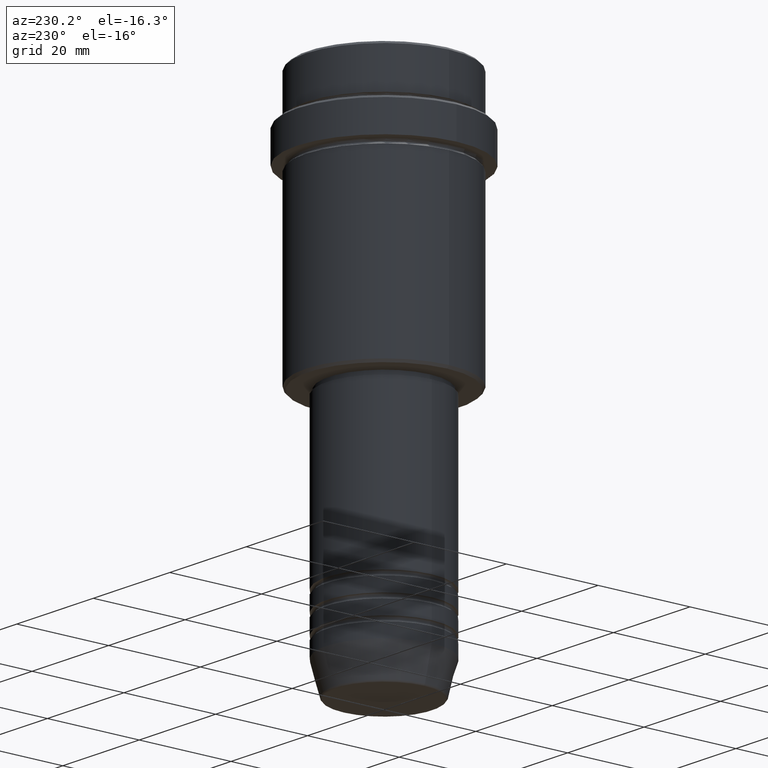
[diagram: clean part render]
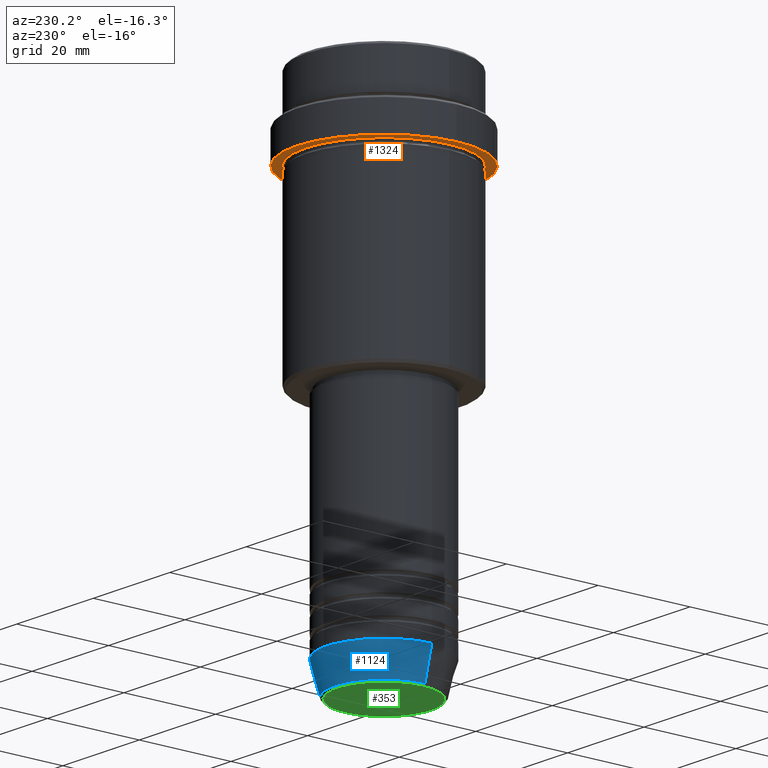
[diagram: same view with three faces highlighted in distinct colors, each labeled with its STEP entity id]
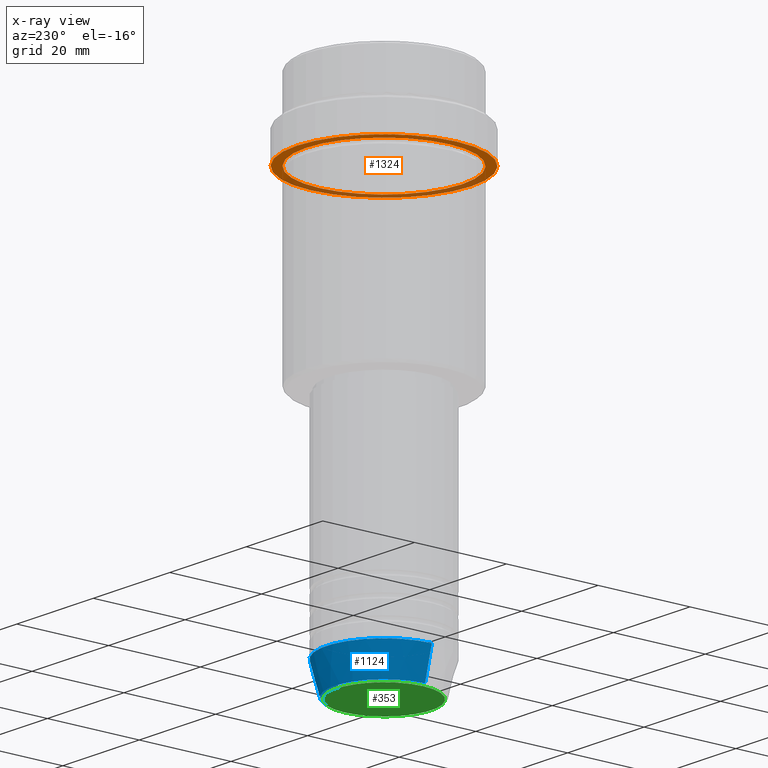
[diagram: x-ray of the same camera — body ghosted, the three highlighted faces saturated]
A machine part, auxiliary view with three faces highlighted in distinct colors.
The next image is the same camera in x-ray (body ghosted, the three faces saturated) — at least one of them is partly hidden behind the body in this view.
Their STEP definitions:

[orange] entity #1324 — the highlighted planar face has unit normal (0, 0, -1).
#48 = AXIS2_PLACEMENT_3D ( 'NONE', #284, #825, #1038 ) ;
#51 = CIRCLE ( 'NONE', #586, 16.99999999999998579 ) ;
#67 = ORIENTED_EDGE ( 'NONE', *, *, #301, .F. ) ;
#81 = FACE_OUTER_BOUND ( 'NONE', #479, .T. ) ;
#85 = VERTEX_POINT ( 'NONE', #260 ) ;
#91 = AXIS2_PLACEMENT_3D ( 'NONE', #837, #600, #1046 ) ;
#152 = EDGE_CURVE ( 'NONE', #972, #1305, #705, .T. ) ;
#179 = DIRECTION ( 'NONE',  ( 1.000000000000000000, 0.000000000000000000, 0.000000000000000000 ) ) ;
#240 = ORIENTED_EDGE ( 'NONE', *, *, #860, .T. ) ;
#260 = CARTESIAN_POINT ( 'NONE',  ( 16.99999999999998579, 2.081899558550499096E-15, -17.00000000000000000 ) ) ;
#268 = DIRECTION ( 'NONE',  ( -1.000000000000000000, 0.000000000000000000, -0.000000000000000000 ) ) ;
#276 = FACE_BOUND ( 'NONE', #937, .T. ) ;
#284 = CARTESIAN_POINT ( 'NONE',  ( 0.000000000000000000, 0.000000000000000000, -17.00000000000000000 ) ) ;
#301 = EDGE_CURVE ( 'NONE', #1305, #972, #708, .T. ) ;
#347 = DIRECTION ( 'NONE',  ( -0.000000000000000000, -0.000000000000000000, 1.000000000000000000 ) ) ;
#377 = PLANE ( 'NONE',  #1079 ) ;
#426 = CARTESIAN_POINT ( 'NONE',  ( 0.000000000000000000, 0.000000000000000000, -17.00000000000000000 ) ) ;
#464 = EDGE_CURVE ( 'NONE', #1073, #85, #51, .T. ) ;
#479 = EDGE_LOOP ( 'NONE', ( #67, #1051 ) ) ;
#556 = CIRCLE ( 'NONE', #48, 16.99999999999998579 ) ;
#586 = AXIS2_PLACEMENT_3D ( 'NONE', #1338, #347, #789 ) ;
#600 = DIRECTION ( 'NONE',  ( -0.000000000000000000, -0.000000000000000000, 1.000000000000000000 ) ) ;
#624 = CARTESIAN_POINT ( 'NONE',  ( -16.99999999999998579, 0.000000000000000000, -17.00000000000000000 ) ) ;
#705 = CIRCLE ( 'NONE', #91, 18.99999999999999289 ) ;
#708 = CIRCLE ( 'NONE', #802, 18.99999999999999289 ) ;
#736 = CARTESIAN_POINT ( 'NONE',  ( -18.99999999999999289, 2.326828918379970182E-15, -17.00000000000000000 ) ) ;
#789 = DIRECTION ( 'NONE',  ( -1.000000000000000000, 0.000000000000000000, 0.000000000000000000 ) ) ;
#802 = AXIS2_PLACEMENT_3D ( 'NONE', #426, #851, #179 ) ;
#823 = DIRECTION ( 'NONE',  ( 0.000000000000000000, 0.000000000000000000, -1.000000000000000000 ) ) ;
#825 = DIRECTION ( 'NONE',  ( -0.000000000000000000, -0.000000000000000000, 1.000000000000000000 ) ) ;
#837 = CARTESIAN_POINT ( 'NONE',  ( 0.000000000000000000, 0.000000000000000000, -17.00000000000000000 ) ) ;
#851 = DIRECTION ( 'NONE',  ( -0.000000000000000000, -0.000000000000000000, 1.000000000000000000 ) ) ;
#860 = EDGE_CURVE ( 'NONE', #85, #1073, #556, .T. ) ;
#937 = EDGE_LOOP ( 'NONE', ( #1270, #240 ) ) ;
#972 = VERTEX_POINT ( 'NONE', #736 ) ;
#1038 = DIRECTION ( 'NONE',  ( -1.000000000000000000, 0.000000000000000000, 0.000000000000000000 ) ) ;
#1046 = DIRECTION ( 'NONE',  ( 1.000000000000000000, 0.000000000000000000, 0.000000000000000000 ) ) ;
#1051 = ORIENTED_EDGE ( 'NONE', *, *, #152, .F. ) ;
#1073 = VERTEX_POINT ( 'NONE', #624 ) ;
#1079 = AXIS2_PLACEMENT_3D ( 'NONE', #1164, #823, #268 ) ;
#1164 = CARTESIAN_POINT ( 'NONE',  ( 0.000000000000000000, 18.99999999999999289, -17.00000000000000000 ) ) ;
#1270 = ORIENTED_EDGE ( 'NONE', *, *, #464, .T. ) ;
#1305 = VERTEX_POINT ( 'NONE', #1365 ) ;
#1324 = ADVANCED_FACE ( 'NONE', ( #276, #81 ), #377, .T. ) ;
#1338 = CARTESIAN_POINT ( 'NONE',  ( 0.000000000000000000, 0.000000000000000000, -17.00000000000000000 ) ) ;
#1365 = CARTESIAN_POINT ( 'NONE',  ( 18.99999999999999289, 0.000000000000000000, -17.00000000000000000 ) ) ;

[blue] entity #1124 — the highlighted conical surface has half-angle 15 deg.
#53 = CARTESIAN_POINT ( 'NONE',  ( -12.50000000000000000, 1.530808498934191521E-15, -103.0000000000000142 ) ) ;
#73 = EDGE_CURVE ( 'NONE', #207, #389, #359, .T. ) ;
#151 = CARTESIAN_POINT ( 'NONE',  ( 12.50000000000000000, 0.000000000000000000, -103.0000000000000142 ) ) ;
#207 = VERTEX_POINT ( 'NONE', #1145 ) ;
#233 = DIRECTION ( 'NONE',  ( 1.000000000000000000, 0.000000000000000000, 0.000000000000000000 ) ) ;
#299 = DIRECTION ( 'NONE',  ( 1.000000000000000000, 0.000000000000000000, 0.000000000000000000 ) ) ;
#303 = LINE ( 'NONE', #322, #878 ) ;
#319 = EDGE_CURVE ( 'NONE', #820, #501, #681, .T. ) ;
#322 = CARTESIAN_POINT ( 'NONE',  ( 12.50000000000000000, 0.000000000000000000, -103.0000000000000142 ) ) ;
#359 = CIRCLE ( 'NONE', #1217, 10.72365507213718416 ) ;
#372 = DIRECTION ( 'NONE',  ( -0.2588190451025213501, 3.169619151431772337E-17, 0.9659258262890680902 ) ) ;
#389 = VERTEX_POINT ( 'NONE', #1357 ) ;
#442 = ORIENTED_EDGE ( 'NONE', *, *, #73, .T. ) ;
#447 = VECTOR ( 'NONE', #372, 1000.000000000000000 ) ;
#455 = CARTESIAN_POINT ( 'NONE',  ( 0.000000000000000000, 0.000000000000000000, -103.0000000000000142 ) ) ;
#501 = VERTEX_POINT ( 'NONE', #1380 ) ;
#574 = FACE_OUTER_BOUND ( 'NONE', #979, .T. ) ;
#679 = DIRECTION ( 'NONE',  ( -0.000000000000000000, -0.000000000000000000, 1.000000000000000000 ) ) ;
#681 = CIRCLE ( 'NONE', #754, 12.50000000000000000 ) ;
#730 = CONICAL_SURFACE ( 'NONE', #1034, 12.50000000000000000, 0.2617993877991500740 ) ;
#754 = AXIS2_PLACEMENT_3D ( 'NONE', #1290, #877, #299 ) ;
#784 = CARTESIAN_POINT ( 'NONE',  ( 0.000000000000000000, 0.000000000000000000, -109.6294095225512706 ) ) ;
#816 = LINE ( 'NONE', #53, #447 ) ;
#820 = VERTEX_POINT ( 'NONE', #151 ) ;
#863 = ORIENTED_EDGE ( 'NONE', *, *, #1001, .F. ) ;
#877 = DIRECTION ( 'NONE',  ( -0.000000000000000000, -0.000000000000000000, 1.000000000000000000 ) ) ;
#878 = VECTOR ( 'NONE', #1406, 1000.000000000000000 ) ;
#898 = DIRECTION ( 'NONE',  ( 1.000000000000000000, 0.000000000000000000, 0.000000000000000000 ) ) ;
#979 = EDGE_LOOP ( 'NONE', ( #442, #1224, #1203, #863 ) ) ;
#1001 = EDGE_CURVE ( 'NONE', #207, #820, #303, .T. ) ;
#1034 = AXIS2_PLACEMENT_3D ( 'NONE', #455, #679, #898 ) ;
#1124 = ADVANCED_FACE ( 'NONE', ( #574 ), #730, .T. ) ;
#1145 = CARTESIAN_POINT ( 'NONE',  ( 10.72365507213718416, 0.000000000000000000, -109.6294095225512706 ) ) ;
#1203 = ORIENTED_EDGE ( 'NONE', *, *, #319, .F. ) ;
#1217 = AXIS2_PLACEMENT_3D ( 'NONE', #784, #1227, #233 ) ;
#1224 = ORIENTED_EDGE ( 'NONE', *, *, #1345, .T. ) ;
#1227 = DIRECTION ( 'NONE',  ( -0.000000000000000000, -0.000000000000000000, 1.000000000000000000 ) ) ;
#1290 = CARTESIAN_POINT ( 'NONE',  ( 0.000000000000000000, 0.000000000000000000, -103.0000000000000142 ) ) ;
#1345 = EDGE_CURVE ( 'NONE', #389, #501, #816, .T. ) ;
#1357 = CARTESIAN_POINT ( 'NONE',  ( -10.72365507213718416, 1.422038742429749727E-15, -109.6294095225512706 ) ) ;
#1380 = CARTESIAN_POINT ( 'NONE',  ( -12.50000000000000000, 1.530808498934191521E-15, -103.0000000000000142 ) ) ;
#1406 = DIRECTION ( 'NONE',  ( 0.2588190451025213501, 0.000000000000000000, 0.9659258262890680902 ) ) ;

[green] entity #353 — the highlighted planar face has unit normal (0, -0, 1).
#26 = AXIS2_PLACEMENT_3D ( 'NONE', #1014, #1106, #1244 ) ;
#38 = CARTESIAN_POINT ( 'NONE',  ( -10.24069215899265473, 1.283696036640841981E-15, -110.0000000000000142 ) ) ;
#107 = CARTESIAN_POINT ( 'NONE',  ( 10.24069215899265473, 0.000000000000000000, -110.0000000000000142 ) ) ;
#117 = ORIENTED_EDGE ( 'NONE', *, *, #1114, .T. ) ;
#139 = ORIENTED_EDGE ( 'NONE', *, *, #511, .T. ) ;
#156 = CIRCLE ( 'NONE', #26, 10.24069215899265473 ) ;
#191 = DIRECTION ( 'NONE',  ( 0.000000000000000000, 0.000000000000000000, -1.000000000000000000 ) ) ;
#193 = FACE_OUTER_BOUND ( 'NONE', #997, .T. ) ;
#245 = AXIS2_PLACEMENT_3D ( 'NONE', #627, #525, #1252 ) ;
#271 = CARTESIAN_POINT ( 'NONE',  ( 0.000000000000000000, 0.000000000000000000, -110.0000000000000142 ) ) ;
#353 = ADVANCED_FACE ( 'NONE', ( #193 ), #417, .F. ) ;
#417 = PLANE ( 'NONE',  #245 ) ;
#511 = EDGE_CURVE ( 'NONE', #1180, #650, #1015, .T. ) ;
#525 = DIRECTION ( 'NONE',  ( 0.000000000000000000, -0.000000000000000000, 1.000000000000000000 ) ) ;
#627 = CARTESIAN_POINT ( 'NONE',  ( 0.000000000000000000, 0.000000000000000000, -110.0000000000000142 ) ) ;
#650 = VERTEX_POINT ( 'NONE', #107 ) ;
#997 = EDGE_LOOP ( 'NONE', ( #117, #139 ) ) ;
#1014 = CARTESIAN_POINT ( 'NONE',  ( 0.000000000000000000, 0.000000000000000000, -110.0000000000000142 ) ) ;
#1015 = CIRCLE ( 'NONE', #1125, 10.24069215899265473 ) ;
#1106 = DIRECTION ( 'NONE',  ( 0.000000000000000000, 0.000000000000000000, -1.000000000000000000 ) ) ;
#1114 = EDGE_CURVE ( 'NONE', #650, #1180, #156, .T. ) ;
#1125 = AXIS2_PLACEMENT_3D ( 'NONE', #271, #191, #1272 ) ;
#1180 = VERTEX_POINT ( 'NONE', #38 ) ;
#1244 = DIRECTION ( 'NONE',  ( 1.000000000000000000, 0.000000000000000000, 0.000000000000000000 ) ) ;
#1252 = DIRECTION ( 'NONE',  ( 1.000000000000000000, 0.000000000000000000, 0.000000000000000000 ) ) ;
#1272 = DIRECTION ( 'NONE',  ( 1.000000000000000000, 0.000000000000000000, 0.000000000000000000 ) ) ;